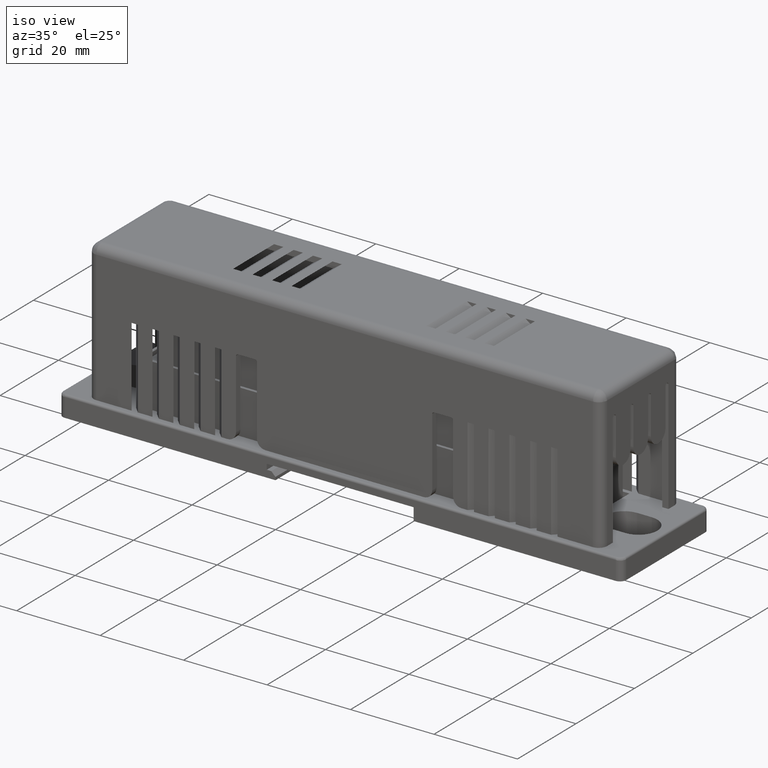
[diagram: clean part render]
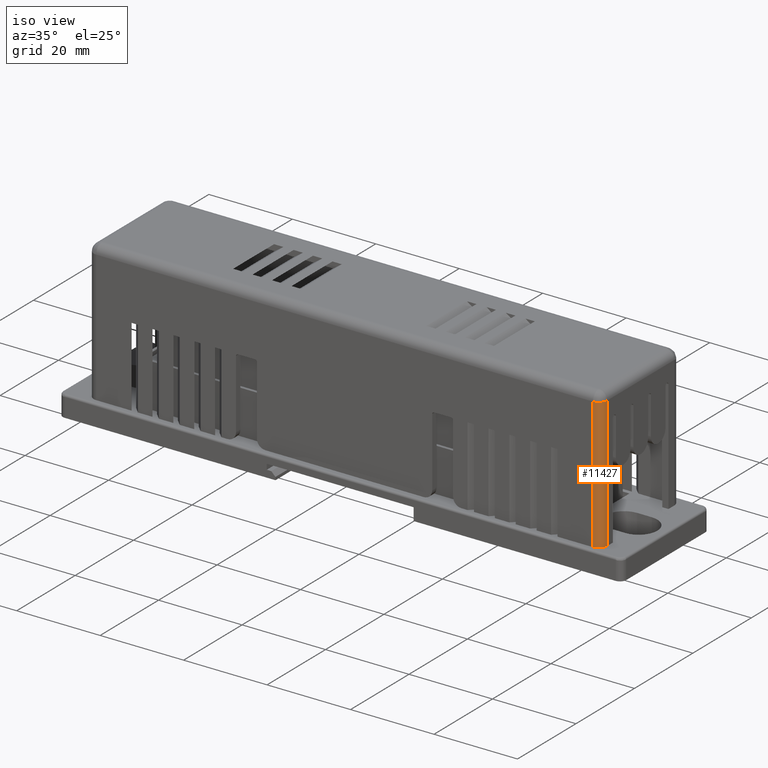
[diagram: same view with one face highlighted and labeled with its STEP entity id]
A machine part, iso view. The second image highlights one B-rep face of the part: STEP entity #11427.
In plain terms, the highlighted cylindrical surface (edge-blend (fillet) strip) has radius 2 mm, axis along (0, 0, 1).
Its self-contained STEP definition (entity closure, byte-faithful):
#178 = CIRCLE ( 'NONE', #8794, 0.07874015748031502893 ) ;
#218 = DIRECTION ( 'NONE',  ( -0.000000000000000000, 0.000000000000000000, 1.000000000000000000 ) ) ;
#506 = CARTESIAN_POINT ( 'NONE',  ( 4.114173228346456490, -0.1377952755905511861, -0.3937007874015748254 ) ) ;
#540 = VERTEX_POINT ( 'NONE', #506 ) ;
#979 = DIRECTION ( 'NONE',  ( 0.000000000000000000, 0.000000000000000000, 1.000000000000000000 ) ) ;
#1427 = EDGE_CURVE ( 'NONE', #9579, #9108, #178, .T. ) ;
#2123 = EDGE_LOOP ( 'NONE', ( #9894, #4924, #16212, #3059 ) ) ;
#2902 = DIRECTION ( 'NONE',  ( -0.000000000000000000, -0.000000000000000000, -1.000000000000000000 ) ) ;
#3059 = ORIENTED_EDGE ( 'NONE', *, *, #3982, .F. ) ;
#3704 = DIRECTION ( 'NONE',  ( 0.000000000000000000, 0.000000000000000000, 1.000000000000000000 ) ) ;
#3982 = EDGE_CURVE ( 'NONE', #540, #9108, #7944, .T. ) ;
#4085 = CARTESIAN_POINT ( 'NONE',  ( 4.114173228346456490, -0.1377952755905511861, -0.3937007874015748254 ) ) ;
#4170 = CARTESIAN_POINT ( 'NONE',  ( 4.114173228346456490, -0.05905511811023622659, 0.8464566929133857665 ) ) ;
#4924 = ORIENTED_EDGE ( 'NONE', *, *, #12192, .T. ) ;
#6270 = FACE_OUTER_BOUND ( 'NONE', #2123, .T. ) ;
#7406 = LINE ( 'NONE', #15215, #10255 ) ;
#7906 = DIRECTION ( 'NONE',  ( 0.000000000000000000, 0.000000000000000000, 1.000000000000000000 ) ) ;
#7944 = LINE ( 'NONE', #4085, #14798 ) ;
#8794 = AXIS2_PLACEMENT_3D ( 'NONE', #4170, #2902, #13146 ) ;
#9108 = VERTEX_POINT ( 'NONE', #16583 ) ;
#9579 = VERTEX_POINT ( 'NONE', #10013 ) ;
#9882 = CYLINDRICAL_SURFACE ( 'NONE', #11080, 0.07874015748031502893 ) ;
#9894 = ORIENTED_EDGE ( 'NONE', *, *, #13834, .T. ) ;
#9917 = CIRCLE ( 'NONE', #14497, 0.07874015748031502893 ) ;
#10013 = CARTESIAN_POINT ( 'NONE',  ( 4.192913385826771311, -0.05905511811023622659, 0.8464566929133857665 ) ) ;
#10255 = VECTOR ( 'NONE', #3704, 39.37007874015748143 ) ;
#11080 = AXIS2_PLACEMENT_3D ( 'NONE', #12492, #979, #11226 ) ;
#11226 = DIRECTION ( 'NONE',  ( 1.000000000000000000, 0.000000000000000000, 0.000000000000000000 ) ) ;
#11427 = ADVANCED_FACE ( 'NONE', ( #6270 ), #9882, .T. ) ;
#11717 = CARTESIAN_POINT ( 'NONE',  ( 4.192913385826771311, -0.05905511811023622659, -0.3937007874015748254 ) ) ;
#11759 = CARTESIAN_POINT ( 'NONE',  ( 4.114173228346456490, -0.05905511811023622659, -0.3937007874015748254 ) ) ;
#12192 = EDGE_CURVE ( 'NONE', #13106, #9579, #7406, .T. ) ;
#12492 = CARTESIAN_POINT ( 'NONE',  ( 4.114173228346456490, -0.05905511811023622659, -0.3937007874015748254 ) ) ;
#12940 = DIRECTION ( 'NONE',  ( 1.000000000000000000, 0.000000000000000000, 0.000000000000000000 ) ) ;
#13106 = VERTEX_POINT ( 'NONE', #11717 ) ;
#13146 = DIRECTION ( 'NONE',  ( 1.000000000000000000, 0.000000000000000000, 0.000000000000000000 ) ) ;
#13834 = EDGE_CURVE ( 'NONE', #540, #13106, #9917, .T. ) ;
#14497 = AXIS2_PLACEMENT_3D ( 'NONE', #11759, #7906, #12940 ) ;
#14798 = VECTOR ( 'NONE', #218, 39.37007874015748143 ) ;
#15215 = CARTESIAN_POINT ( 'NONE',  ( 4.192913385826771311, -0.05905511811023622659, -0.3937007874015748254 ) ) ;
#16212 = ORIENTED_EDGE ( 'NONE', *, *, #1427, .T. ) ;
#16583 = CARTESIAN_POINT ( 'NONE',  ( 4.114173228346456490, -0.1377952755905511861, 0.8464566929133857665 ) ) ;